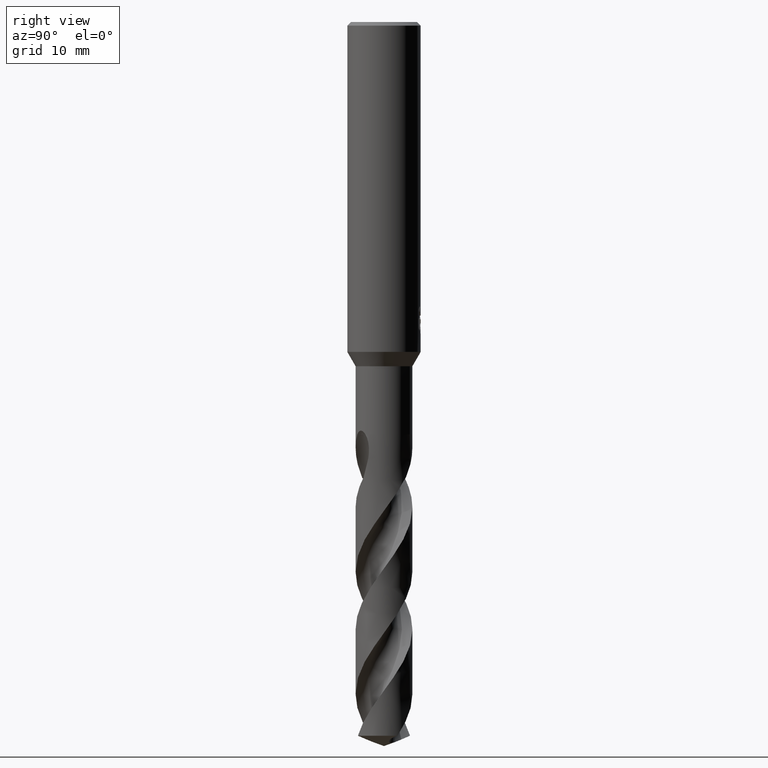
[diagram: clean part render]
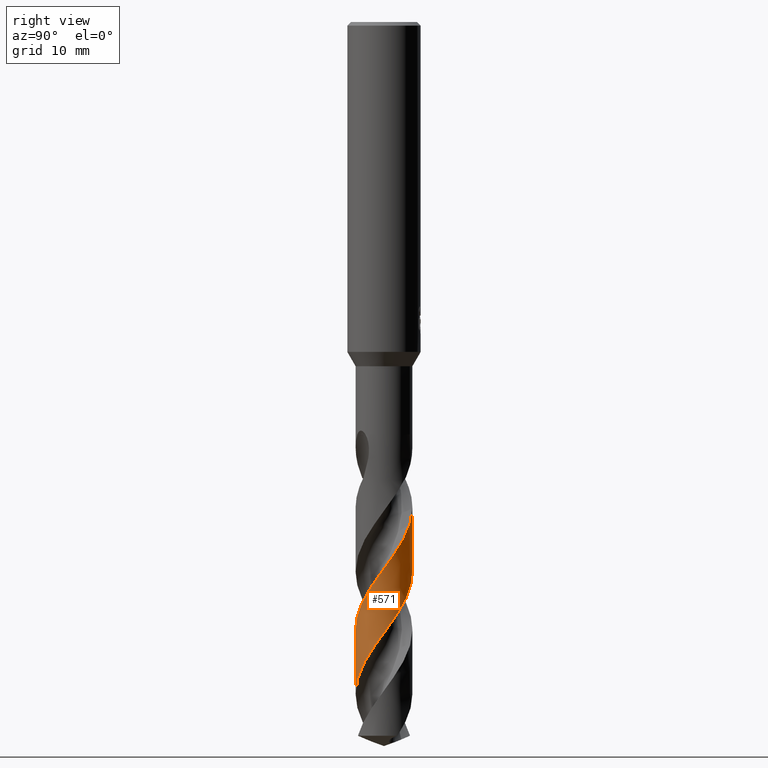
[diagram: same view with one face highlighted and labeled with its STEP entity id]
A machine part, right view. The second image highlights one B-rep face of the part: STEP entity #571.
In plain terms, the highlighted conical surface has half-angle 0 deg.
Its self-contained STEP definition (entity closure, byte-faithful):
#335=VERTEX_POINT('',#832);
#367=VERTEX_POINT('',#866);
#533=EDGE_CURVE('',#367,#335,#1048,.T.);
#571=ADVANCED_FACE('',(#1091),#1092,.T.);
#579=EDGE_CURVE('',#599,#335,#1100,.T.);
#599=VERTEX_POINT('',#1122);
#683=VERTEX_POINT('',#1215);
#723=EDGE_CURVE('',#599,#683,#1258,.T.);
#731=EDGE_CURVE('',#367,#683,#1266,.T.);
#832=CARTESIAN_POINT('',(3.59300457569718E-013,3.09994558055134,-59.9830985722831));
#866=CARTESIAN_POINT('',(1.45184993000156E-013,-3.09998612539507,-73.3108748370046));
#1048=B_SPLINE_CURVE_WITH_KNOTS('',3,(#3474,#3475,#3476,#3477,#3478,#3479,#3480,#3481,#3482,#3483,#3484,#3485,#3486,#3487,#3488,#3489,#3490,#3491,#3492,#3493,#3494,#3495,#3496,#3497,#3498,#3499,#3500,#3501,#3502,#3503,#3504,#3505,#3506,#3507,#3508,#3509,#3510,#3511,#3512,#3513,#3514,#3515,#3516,#3517,#3518,#3519,#3520,#3521,#3522,#3523,#3524,#3525,#3526,#3527,#3528,#3529,#3530,#3531,#3532,#3533,#3534,#3535,#3536,#3537,#3538,#3539,#3540,#3541,#3542,#3543,#3544,#3545,#3546,#3547,#3548,#3549,#3550,#3551,#3552,#3553,#3554,#3555),.UNSPECIFIED.,.F.,.F.,(4,2,2,2,2,2,2,2,2,2,2,2,2,2,2,2,2,2,2,2,2,2,2,2,2,2,2,2,2,2,2,2,2,2,2,2,2,2,2,2,4),(0.0,0.856061599828622,0.909993545275525,2.47001117801632,4.11663149555006,4.97788667861403,5.77339937239594,6.82589621890352,7.35276408944696,8.10413594333848,9.45348225411435,10.1638512290965,11.826560355959,12.62863139729,14.1920922370611,14.963849561981,16.5467631671824,16.9880790544425,18.6136075786344,19.3283413888064,21.0507988695984,21.8081547147079,23.196897945867,23.9867266121363,25.7228031876387,26.4939513485833,27.4284210849276,28.858554970066,29.2275521603569,29.5724951064688,30.8626793025605,32.7375491687495,32.9987990634023,33.4015367632623,33.8830651022223,34.0650285010144,34.1431930004415,34.2327389639865,34.3898748303979,34.5913180951472,34.8061493500424),.UNSPECIFIED.);
#1091=FACE_OUTER_BOUND('',#4469,.T.);
#1092=CONICAL_SURFACE('',#4470,3.09995,3.04213117983229E-006);
#1100=LINE('',#4485,#4486);
#1122=CARTESIAN_POINT('',(-1.91148116731294E-013,3.09992421629168,-52.9603048780647));
#1215=CARTESIAN_POINT('',(1.10700503171614E-014,-3.09996475892202,-66.2873535668919));
#1258=B_SPLINE_CURVE_WITH_KNOTS('',3,(#5208,#5209,#5210,#5211,#5212,#5213,#5214,#5215,#5216,#5217,#5218,#5219,#5220,#5221,#5222,#5223,#5224,#5225,#5226,#5227,#5228,#5229,#5230,#5231,#5232,#5233,#5234,#5235,#5236,#5237,#5238,#5239,#5240,#5241,#5242,#5243,#5244,#5245,#5246,#5247,#5248,#5249,#5250,#5251,#5252,#5253,#5254,#5255,#5256,#5257,#5258,#5259,#5260,#5261,#5262,#5263,#5264,#5265,#5266,#5267,#5268,#5269,#5270,#5271,#5272,#5273,#5274,#5275,#5276,#5277,#5278,#5279,#5280,#5281,#5282,#5283,#5284,#5285,#5286,#5287,#5288,#5289,#5290,#5291,#5292,#5293,#5294,#5295,#5296,#5297,#5298,#5299,#5300,#5301,#5302,#5303,#5304,#5305,#5306,#5307,#5308,#5309,#5310,#5311),.UNSPECIFIED.,.F.,.F.,(4,2,2,2,2,2,2,2,2,2,2,2,2,2,2,2,2,2,2,2,2,2,2,2,2,2,2,2,2,2,2,2,2,2,2,2,2,2,2,2,2,2,2,2,2,2,2,2,2,2,2,4),(0.0,0.136946986793613,0.229718255101005,0.323860255950629,0.633805490120795,0.750471055849991,0.827734775825729,0.90222915021985,1.00517074867324,1.12089827183965,1.15176347789127,1.56413599742412,1.83160394047863,2.09594022928026,2.37395497018712,3.11240418527174,3.83836121867902,4.77309386583688,5.642492892921,5.74962141121576,6.61312128054981,7.04068475595602,8.23432929557351,8.66834649965153,9.56583247418684,10.9829412160908,11.6800488925371,12.8610285125894,14.5911279546374,15.4588963052426,16.2237997520884,17.3751613627898,17.8092851759966,18.510716516233,19.6741789335191,20.1079980364232,20.7922746806447,21.9609111252291,23.691257401158,24.5580686180792,25.3368024240555,26.4867804921278,26.9205508494082,27.620139809388,28.7827874514389,30.3402432037473,31.5038893840848,32.3760856401906,33.6997656939942,34.0331017318674,34.2827029914415,35.0324008865194),.UNSPECIFIED.);
#1266=LINE('',#5336,#5337);
#3474=CARTESIAN_POINT('',(-2.72634811048657,-1.47547483219683,-77.8716922737748));
#3475=CARTESIAN_POINT('',(-2.64635538440092,-1.6232820587684,-77.6410821769975));
#3476=CARTESIAN_POINT('',(-2.55452195492674,-1.76425062763587,-77.4116573986516));
#3477=CARTESIAN_POINT('',(-2.44534140230759,-1.90536189100122,-77.1663861455528));
#3478=CARTESIAN_POINT('',(-2.4388229803582,-1.91369837386474,-77.1518393935002));
#3479=CARTESIAN_POINT('',(-2.24196150736785,-2.16281670433034,-76.7155912062384));
#3480=CARTESIAN_POINT('',(-2.01673310933797,-2.37436600011872,-76.3008129523091));
#3481=CARTESIAN_POINT('',(-1.49606743784779,-2.73448646712555,-75.4367216834538));
#3482=CARTESIAN_POINT('',(-1.20152556748738,-2.87610708608681,-74.9900905079868));
#3483=CARTESIAN_POINT('',(-0.727187310853633,-3.01828612971496,-74.3144634182087));
#3484=CARTESIAN_POINT('',(-0.560698890087298,-3.05358036846942,-74.0835779158124));
#3485=CARTESIAN_POINT('',(-0.23682310004508,-3.09490106078681,-73.6368229663575));
#3486=CARTESIAN_POINT('',(-0.0803695289595083,-3.10288993925046,-73.4210447885167));
#3487=CARTESIAN_POINT('',(0.282906027460936,-3.09397845578656,-72.9227831784695));
#3488=CARTESIAN_POINT('',(0.489076614116897,-3.06819438133832,-72.6412856971336));
#3489=CARTESIAN_POINT('',(0.79279758748092,-2.99869447333417,-72.2163704122085));
#3490=CARTESIAN_POINT('',(0.892724862914313,-2.97046578796057,-72.0747947292145));
#3491=CARTESIAN_POINT('',(1.13089504515972,-2.89011960132843,-71.730301535845));
#3492=CARTESIAN_POINT('',(1.26713798988906,-2.8330350924976,-71.5266924366157));
#3493=CARTESIAN_POINT('',(1.63589891078072,-2.64653727717517,-70.9604136551687));
#3494=CARTESIAN_POINT('',(1.85646426046794,-2.49679643638623,-70.6013373005943));
#3495=CARTESIAN_POINT('',(2.16006324438638,-2.22790108610407,-70.0467689627229));
#3496=CARTESIAN_POINT('',(2.25812765756992,-2.12839238810443,-69.8545155048126));
#3497=CARTESIAN_POINT('',(2.56134803218943,-1.77632209026346,-69.2160840690739));
#3498=CARTESIAN_POINT('',(2.73371916233099,-1.49763877991786,-68.7772369528156));
#3499=CARTESIAN_POINT('',(2.92033095944891,-1.05177095153645,-68.1155297254919));
#3500=CARTESIAN_POINT('',(2.9698230840822,-0.902571015297004,-67.8989173668533));
#3501=CARTESIAN_POINT('',(3.08192389971728,-0.453089172724536,-67.2638826689137));
#3502=CARTESIAN_POINT('',(3.11157316044,-0.146826754874188,-66.8512007990642));
#3503=CARTESIAN_POINT('',(3.08815615828627,0.309663764788545,-66.2247024356697));
#3504=CARTESIAN_POINT('',(3.0694350495479,0.459564287598094,-66.0165158313588));
#3505=CARTESIAN_POINT('',(2.97899663139075,0.911859594708162,-65.3846177992514));
#3506=CARTESIAN_POINT('',(2.87300240662324,1.20476388144366,-64.9670800149988));
#3507=CARTESIAN_POINT('',(2.68437946823484,1.55283707398325,-64.4238498868267));
#3508=CARTESIAN_POINT('',(2.64020959218369,1.62679174664505,-64.3050306569709));
#3509=CARTESIAN_POINT('',(2.4192176697869,1.96410441816405,-63.7507656335691));
#3510=CARTESIAN_POINT('',(2.20561904889765,2.20136858535621,-63.32270213575));
#3511=CARTESIAN_POINT('',(1.85095595150199,2.49062492580703,-62.6966776633128));
#3512=CARTESIAN_POINT('',(1.73704836374,2.57132729098166,-62.5044665640221));
#3513=CARTESIAN_POINT('',(1.33247683019162,2.81896943214959,-61.8529384448632));
#3514=CARTESIAN_POINT('',(1.02008956944251,2.94646065857445,-61.4017092048971));
#3515=CARTESIAN_POINT('',(0.54937683016514,3.05444207380853,-60.7398698431226));
#3516=CARTESIAN_POINT('',(0.403674132877062,3.07709006555978,-60.5366302740777));
#3517=CARTESIAN_POINT('',(-0.0129227537643519,3.11169894954077,-59.9637440336629));
#3518=CARTESIAN_POINT('',(-0.284322925434375,3.09872670263532,-59.5979259148791));
#3519=CARTESIAN_POINT('',(-0.702260670168666,3.02327326389988,-59.0170238660377));
#3520=CARTESIAN_POINT('',(-0.851178286859917,2.98474062812558,-58.8051919335407));
#3521=CARTESIAN_POINT('',(-1.31581139472874,2.82701297567111,-58.1318806868582));
#3522=CARTESIAN_POINT('',(-1.61508175250636,2.66733107545863,-57.678546574898));
#3523=CARTESIAN_POINT('',(-2.00164980484342,2.37179333806262,-57.0106822781491));
#3524=CARTESIAN_POINT('',(-2.11398981973316,2.27226592130408,-56.8038571738229));
#3525=CARTESIAN_POINT('',(-2.34589484105545,2.03456973496187,-56.3490808596131));
#3526=CARTESIAN_POINT('',(-2.4614103585093,1.89323629711318,-56.1014788864566));
#3527=CARTESIAN_POINT('',(-2.72092133289152,1.51133998070718,-55.4721441041847));
#3528=CARTESIAN_POINT('',(-2.84568805218801,1.2606159452697,-55.0902686308879));
#3529=CARTESIAN_POINT('',(-2.95833763401409,0.92895671367555,-54.6107841193555));
#3530=CARTESIAN_POINT('',(-2.97907067469868,0.860150385024829,-54.5125372941084));
#3531=CARTESIAN_POINT('',(-3.01452462981195,0.725746135556582,-54.3222733890862));
#3532=CARTESIAN_POINT('',(-3.0295366570361,0.660281529042074,-54.2302761087022));
#3533=CARTESIAN_POINT('',(-3.09057283324241,0.347848280864119,-53.7945243341825));
#3534=CARTESIAN_POINT('',(-3.10862291586506,0.0961930452158464,-53.4522379601807));
#3535=CARTESIAN_POINT('',(-3.07777375364783,-0.519999551629474,-52.6091907651317));
#3536=CARTESIAN_POINT('',(-2.99493559399337,-0.882628135485706,-52.0962622800658));
#3537=CARTESIAN_POINT('',(-2.82693910474308,-1.27303591079463,-51.5305687826182));
#3538=CARTESIAN_POINT('',(-2.80522261151156,-1.32023429390697,-51.4620053482913));
#3539=CARTESIAN_POINT('',(-2.7459876292501,-1.44072281146007,-51.2821126374255));
#3540=CARTESIAN_POINT('',(-2.70772132286546,-1.51128089016874,-51.1728416981194));
#3541=CARTESIAN_POINT('',(-2.6194475545699,-1.66038849450446,-50.9294275514962));
#3542=CARTESIAN_POINT('',(-2.5691621957831,-1.73687326118517,-50.796096252347));
#3543=CARTESIAN_POINT('',(-2.49800291849997,-1.83591553493237,-50.6078385488602));
#3544=CARTESIAN_POINT('',(-2.478652266079,-1.86228821286828,-50.5557424685568));
#3545=CARTESIAN_POINT('',(-2.43616650203103,-1.91703135716878,-50.4544867270376));
#3546=CARTESIAN_POINT('',(-2.42302932738163,-1.93361698255293,-50.4243273921942));
#3547=CARTESIAN_POINT('',(-2.39396821331792,-1.96951911063905,-50.3601130605556));
#3548=CARTESIAN_POINT('',(-2.37794481962915,-1.98884727404836,-50.3261917569578));
#3549=CARTESIAN_POINT('',(-2.33228219915218,-2.04253620279783,-50.233629467923));
#3550=CARTESIAN_POINT('',(-2.30160559622204,-2.07710356366978,-50.1758801714008));
#3551=CARTESIAN_POINT('',(-2.22753347184699,-2.15668733941675,-50.0463842786885));
#3552=CARTESIAN_POINT('',(-2.18322739135822,-2.20164613368566,-49.9756997241563));
#3553=CARTESIAN_POINT('',(-2.08555221120832,-2.29451106239094,-49.8330469945131));
#3554=CARTESIAN_POINT('',(-2.03207488129949,-2.34212739751627,-49.761742368007));
#3555=CARTESIAN_POINT('',(-1.97534083153026,-2.38903685765276,-49.6922));
#4469=EDGE_LOOP('',(#5751,#5752,#5753,#5754));
#4470=AXIS2_PLACEMENT_3D('',#5755,#5756,#5757);
#4485=CARTESIAN_POINT('',(-3.79516149023542E-016,3.09995,-61.4358461368874));
#4486=VECTOR('',#5758,1.0);
#5208=CARTESIAN_POINT('',(-2.1546791369507,2.22863777333226,-49.6922));
#5209=CARTESIAN_POINT('',(-2.1361835489693,2.24651973406913,-49.7299091435135));
#5210=CARTESIAN_POINT('',(-2.11741287720354,2.26422312975322,-49.7675717885245));
#5211=CARTESIAN_POINT('',(-2.08536381305146,2.29369528722829,-49.830656865173));
#5212=CARTESIAN_POINT('',(-2.07228553410757,2.30551906442901,-49.8560731879783));
#5213=CARTESIAN_POINT('',(-2.04560186107261,2.3292292343992,-49.9072262398804));
#5214=CARTESIAN_POINT('',(-2.03201740610345,2.34109100756763,-49.9329126284698));
#5215=CARTESIAN_POINT('',(-1.97294199554458,2.39176481830195,-50.0430420107995));
#5216=CARTESIAN_POINT('',(-1.92647230887286,2.42938785759447,-50.1257102200043));
#5217=CARTESIAN_POINT('',(-1.85946067010377,2.48040628712321,-50.240071626623));
#5218=CARTESIAN_POINT('',(-1.84092781549685,2.4941937186914,-50.2712278536069));
#5219=CARTESIAN_POINT('',(-1.80973326771388,2.51685953397009,-50.3229919246809));
#5220=CARTESIAN_POINT('',(-1.79721965663825,2.52581073869386,-50.3435804819065));
#5221=CARTESIAN_POINT('',(-1.77246472973919,2.54324029533108,-50.3840075999771));
#5222=CARTESIAN_POINT('',(-1.76024098136012,2.55171615464382,-50.4038282364838));
#5223=CARTESIAN_POINT('',(-1.73095059451973,2.57171465021678,-50.4510387263634));
#5224=CARTESIAN_POINT('',(-1.71383892123704,2.58314984102399,-50.4783933530387));
#5225=CARTESIAN_POINT('',(-1.67724833216101,2.6070784114738,-50.5365487306448));
#5226=CARTESIAN_POINT('',(-1.65777165252383,2.61950570711065,-50.5673042732374));
#5227=CARTESIAN_POINT('',(-1.63296825197672,2.63494559315189,-50.6063491737793));
#5228=CARTESIAN_POINT('',(-1.62779647027817,2.6381437240984,-50.6144855147576));
#5229=CARTESIAN_POINT('',(-1.55261170714586,2.68432939300852,-50.73275378815));
#5230=CARTESIAN_POINT('',(-1.48147291653204,2.72419901722436,-50.8442057735398));
#5231=CARTESIAN_POINT('',(-1.3628006802792,2.78478293209853,-51.0274805047794));
#5232=CARTESIAN_POINT('',(-1.31555878959479,2.80740772010124,-51.0997827895459));
#5233=CARTESIAN_POINT('',(-1.22061915877738,2.8499580475843,-51.2433640482803));
#5234=CARTESIAN_POINT('',(-1.17284074762802,2.86995353142089,-51.3147859534279));
#5235=CARTESIAN_POINT('',(-1.07368284687273,2.90855327417773,-51.461040336057));
#5236=CARTESIAN_POINT('',(-1.02252146141126,2.92693220952608,-51.5353492387558));
#5237=CARTESIAN_POINT('',(-0.833002989816784,2.98941999089583,-51.8078222902036));
#5238=CARTESIAN_POINT('',(-0.69232761140708,3.02509504765418,-52.0048357706193));
#5239=CARTESIAN_POINT('',(-0.409469320745108,3.07606163331303,-52.3974648987972));
#5240=CARTESIAN_POINT('',(-0.267921910383887,3.09158601822375,-52.5926664858091));
#5241=CARTESIAN_POINT('',(0.056639040859572,3.10479492673698,-53.038229405797));
#5242=CARTESIAN_POINT('',(0.239761092529785,3.09606313218801,-53.2878313001441));
#5243=CARTESIAN_POINT('',(0.590043830577092,3.04801948869421,-53.7711695666556));
#5244=CARTESIAN_POINT('',(0.75656467300604,3.0110017039639,-54.0037843787811));
#5245=CARTESIAN_POINT('',(0.939151872934818,2.95431691149895,-54.2655460220615));
#5246=CARTESIAN_POINT('',(0.959118020852201,2.94789548002973,-54.2942642478956));
#5247=CARTESIAN_POINT('',(1.13940978501789,2.88788531545293,-54.5544501507112));
#5248=CARTESIAN_POINT('',(1.29522246666958,2.82144979625551,-54.7855003607162));
#5249=CARTESIAN_POINT('',(1.51899095461267,2.70356309674191,-55.1314528097575));
#5250=CARTESIAN_POINT('',(1.59145171907936,2.66155254258199,-55.2459015202599));
#5251=CARTESIAN_POINT('',(1.8593747929287,2.4913690879507,-55.6805479887187));
#5252=CARTESIAN_POINT('',(2.04194496338176,2.34409120254844,-56.0000904892876));
#5253=CARTESIAN_POINT('',(2.26600976167869,2.11708038872656,-56.4363323246231));
#5254=CARTESIAN_POINT('',(2.32325332058411,2.05410133218384,-56.5525659353113));
#5255=CARTESIAN_POINT('',(2.49073348189089,1.85386392764553,-56.9093437521335));
#5256=CARTESIAN_POINT('',(2.5918249606779,1.70965210726609,-57.1492966429127));
#5257=CARTESIAN_POINT('',(2.81948452425102,1.3179762771996,-57.7701246465069));
#5258=CARTESIAN_POINT('',(2.92618140143725,1.06032669002632,-58.1486126960419));
#5259=CARTESIAN_POINT('',(3.03205039185946,0.659538562834413,-58.7151903566339));
#5260=CARTESIAN_POINT('',(3.05815573101868,0.525322884479234,-58.9016127817469));
#5261=CARTESIAN_POINT('',(3.1044169242481,0.160436515586609,-59.405344991647));
#5262=CARTESIAN_POINT('',(3.10775121094934,-0.0716790102470843,-59.7216222869014));
#5263=CARTESIAN_POINT('',(3.05214187417115,-0.639633145494344,-60.50215104418));
#5264=CARTESIAN_POINT('',(2.96392760619357,-0.96934126784199,-60.9628185816585));
#5265=CARTESIAN_POINT('',(2.75416985126497,-1.43287313202534,-61.6597350515013));
#5266=CARTESIAN_POINT('',(2.67144485541337,-1.58178425716132,-61.8919858769398));
#5267=CARTESIAN_POINT('',(2.49345832142066,-1.84793775018952,-62.3296457420842));
#5268=CARTESIAN_POINT('',(2.4011922986513,-1.96632589329904,-62.5341548179192));
#5269=CARTESIAN_POINT('',(2.14962139722253,-2.24493140053946,-63.0482594143293));
#5270=CARTESIAN_POINT('',(1.9805672274661,-2.39542094642315,-63.3567573824365));
#5271=CARTESIAN_POINT('',(1.72723337752446,-2.57558620199321,-63.7819910714858));
#5272=CARTESIAN_POINT('',(1.65584802608834,-2.62205193352039,-63.898333520704));
#5273=CARTESIAN_POINT('',(1.46430443866642,-2.73577930550509,-64.2028082400313));
#5274=CARTESIAN_POINT('',(1.34153059487129,-2.79802260982515,-64.3904858107419));
#5275=CARTESIAN_POINT('',(1.00536628325606,-2.94125195262466,-64.8909488336747));
#5276=CARTESIAN_POINT('',(0.7863035832187,-3.00725096249568,-65.2027393760584));
#5277=CARTESIAN_POINT('',(0.478218213785874,-3.06403588739913,-65.6312415789362));
#5278=CARTESIAN_POINT('',(0.39392348949558,-3.07601073757539,-65.7475304606134));
#5279=CARTESIAN_POINT('',(0.175619693380239,-3.0978966557667,-66.0474015114404));
#5280=CARTESIAN_POINT('',(0.0413884567298494,-3.10258815618399,-66.2305619170614));
#5281=CARTESIAN_POINT('',(-0.321601483592073,-3.09173446973066,-66.7279437106787));
#5282=CARTESIAN_POINT('',(-0.549209517066682,-3.05953085586619,-67.0411887933012));
#5283=CARTESIAN_POINT('',(-1.1000640819422,-2.91803158288202,-67.8190966435328));
#5284=CARTESIAN_POINT('',(-1.41263254659431,-2.78016360572527,-68.2801058429046));
#5285=CARTESIAN_POINT('',(-1.83868394784754,-2.50158707582304,-68.9773849787042));
#5286=CARTESIAN_POINT('',(-1.97308903212107,-2.39701857298348,-69.2095722441893));
#5287=CARTESIAN_POINT('',(-2.21081757625782,-2.17841446141871,-69.6510350991393));
#5288=CARTESIAN_POINT('',(-2.31543711755409,-2.06685918586393,-69.8593893352173));
#5289=CARTESIAN_POINT('',(-2.55305455238517,-1.77273726391829,-70.3772435112584));
#5290=CARTESIAN_POINT('',(-2.67525451773431,-1.58233957143507,-70.6856127485867));
#5291=CARTESIAN_POINT('',(-2.81362974998076,-1.30407249281558,-71.1107137658536));
#5292=CARTESIAN_POINT('',(-2.8483836189589,-1.22631065964454,-71.2270524980306));
#5293=CARTESIAN_POINT('',(-2.93072758372493,-1.01959837908461,-71.5311764149658));
#5294=CARTESIAN_POINT('',(-2.97298365652335,-0.888859995374701,-71.71850527832));
#5295=CARTESIAN_POINT('',(-3.0620194127862,-0.53470520122704,-72.2186507203242));
#5296=CARTESIAN_POINT('',(-3.09307338008322,-0.308015112780222,-72.530478912605));
#5297=CARTESIAN_POINT('',(-3.10683429855242,0.225707882531693,-73.2607927882136));
#5298=CARTESIAN_POINT('',(-3.06946078492958,0.530655915815941,-73.6761595955515));
#5299=CARTESIAN_POINT('',(-2.92745952829683,1.04497750909182,-74.4071427503029));
#5300=CARTESIAN_POINT('',(-2.84259042414454,1.25771540625977,-74.7185437532436));
#5301=CARTESIAN_POINT('',(-2.65436957116615,1.61047040813969,-75.2649462234057));
#5302=CARTESIAN_POINT('',(-2.56142824699494,1.75450112776458,-75.4985504661599));
#5303=CARTESIAN_POINT('',(-2.298982371356,2.09570471447749,-76.088582554515));
#5304=CARTESIAN_POINT('',(-2.11543315998815,2.28089488051412,-76.4431039826451));
#5305=CARTESIAN_POINT('',(-1.85920177287825,2.48145823384784,-76.8879718163703));
#5306=CARTESIAN_POINT('',(-1.80638756343105,2.5201653212831,-76.9774207667282));
#5307=CARTESIAN_POINT('',(-1.71194438543593,2.58488602021617,-77.133910762729));
#5308=CARTESIAN_POINT('',(-1.67086134170315,2.61163006461276,-77.200899021761));
#5309=CARTESIAN_POINT('',(-1.50393124623608,2.71474707768831,-77.4692166427025));
#5310=CARTESIAN_POINT('',(-1.37335416045294,2.78308409163488,-77.6703708945332));
#5311=CARTESIAN_POINT('',(-1.2384274149873,2.84188274526022,-77.8716922737748));
#5336=CARTESIAN_POINT('',(3.79727544282793E-016,-3.09995,-61.4358461368874));
#5337=VECTOR('',#5936,1.0);
#5751=ORIENTED_EDGE('',*,*,#579,.F.);
#5752=ORIENTED_EDGE('',*,*,#723,.T.);
#5753=ORIENTED_EDGE('',*,*,#731,.F.);
#5754=ORIENTED_EDGE('',*,*,#533,.T.);
#5755=CARTESIAN_POINT('',(0.0,0.0,-61.4358461368874));
#5756=DIRECTION('',(0.0,-0.0,-1.0));
#5757=DIRECTION('',(0.0,1.0,0.0));
#5758=DIRECTION('',(-3.72541317197805E-022,3.0421311798276E-006,-0.999999999995373));
#5936=DIRECTION('',(-3.72541317197805E-022,3.0421311798276E-006,0.999999999995373));